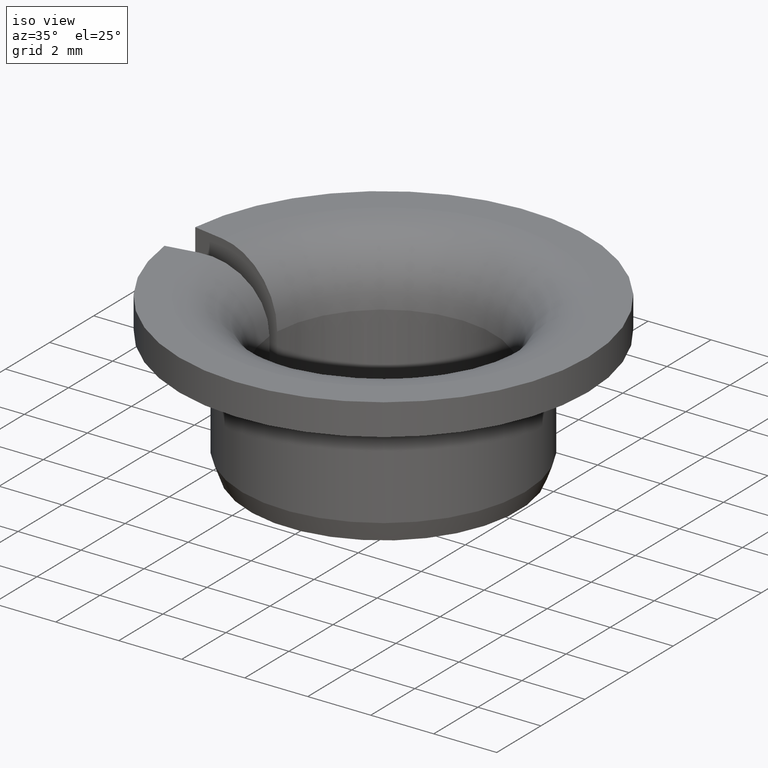
[diagram: clean part render]
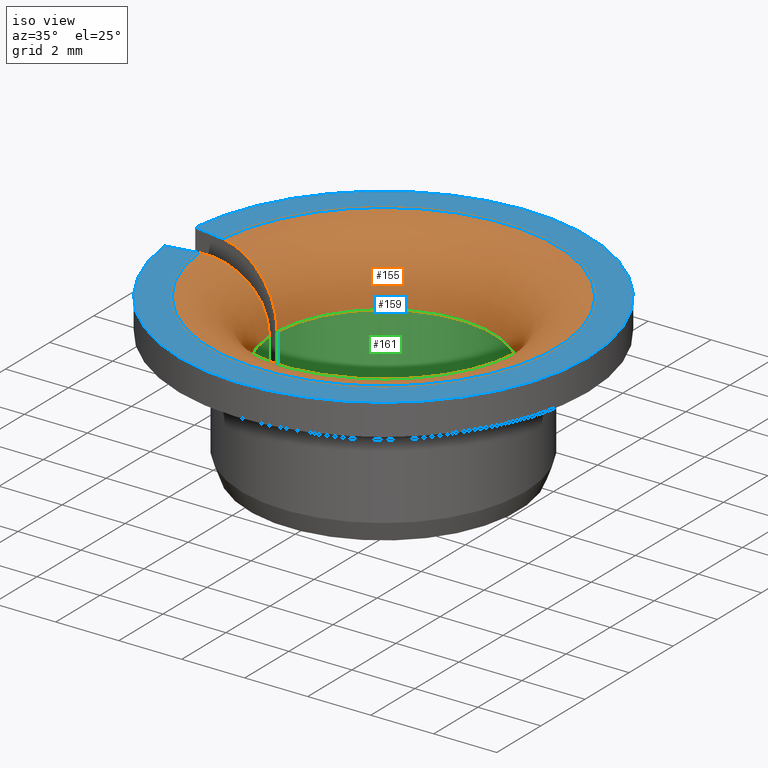
[diagram: same view with three faces highlighted in distinct colors, each labeled with its STEP entity id]
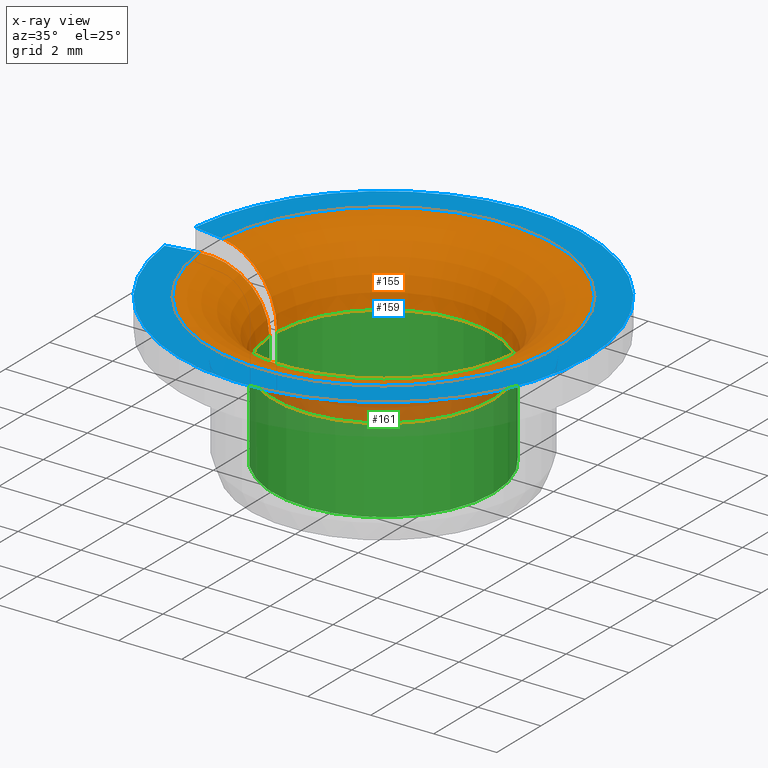
[diagram: x-ray of the same camera — body ghosted, the three highlighted faces saturated]
A machine part, iso view with three faces highlighted in distinct colors.
The next image is the same camera in x-ray (body ghosted, the three faces saturated) — at least one of them is partly hidden behind the body in this view.
Their STEP definitions:

[orange] entity #155 — the highlighted toroidal blend (fillet) surface has major radius 5.5 mm and minor (blend) radius 2 mm.
#155=ADVANCED_FACE('',(#171),#172,.T.);
#171=FACE_OUTER_BOUND('',#196,.T.);
#172=TOROIDAL_SURFACE('',#197,0.0055,0.002);
#196=EDGE_LOOP('',(#236,#237,#238,#239));
#197=AXIS2_PLACEMENT_3D('',#240,#241,#242);
#236=ORIENTED_EDGE('',*,*,#325,.T.);
#237=ORIENTED_EDGE('',*,*,#326,.T.);
#238=ORIENTED_EDGE('',*,*,#327,.F.);
#239=ORIENTED_EDGE('',*,*,#312,.F.);
#240=CARTESIAN_POINT('',(0.0,0.0,0.003));
#241=DIRECTION('',(0.0,-6.12323399573677E-017,-1.0));
#242=DIRECTION('',(0.0,1.0,-6.12323399573677E-017));
#312=EDGE_CURVE('',#342,#343,#344,.T.);
#325=EDGE_CURVE('',#342,#367,#368,.T.);
#326=EDGE_CURVE('',#367,#369,#370,.T.);
#327=EDGE_CURVE('',#343,#369,#371,.T.);
#342=VERTEX_POINT('',#392);
#343=VERTEX_POINT('',#393);
#344=B_SPLINE_CURVE_WITH_KNOTS('',3,(#394,#395,#396,#397,#398,#399,#400,#401,#402,#403,#404,#405,#406,#407),.UNSPECIFIED.,.F.,.F.,(4,2,2,2,2,2,4),(1.97150682175314E-007,0.000391667994127723,0.00078313883757327,0.00117460968101882,0.00156608052446437,0.00234902221135546,0.00313196389824656),.UNSPECIFIED.);
#367=VERTEX_POINT('',#454);
#368=CIRCLE('',#455,0.0035);
#369=VERTEX_POINT('',#456);
#370=B_SPLINE_CURVE_WITH_KNOTS('',3,(#457,#458,#459,#460,#461,#462,#463,#464,#465,#466,#467,#468,#469,#470),.UNSPECIFIED.,.F.,.F.,(4,2,2,2,2,2,4),(1.97150682175314E-007,0.000391667994127723,0.00078313883757327,0.00117460968101882,0.00156608052446437,0.00234902221135546,0.00313196389824656),.UNSPECIFIED.);
#371=CIRCLE('',#471,0.0055);
#392=CARTESIAN_POINT('',(0.00349559467419468,-0.000175550202910175,0.003));
#393=CARTESIAN_POINT('',(0.00547492801128088,-0.000524560074054194,0.005));
#394=CARTESIAN_POINT('',(0.00349559467419468,-0.000175550202910176,0.003));
#395=CARTESIAN_POINT('',(0.00349559467419468,-0.000175550202910176,0.00313237505254623));
#396=CARTESIAN_POINT('',(0.00350851030739531,-0.000177827577516383,0.0032625130222032));
#397=CARTESIAN_POINT('',(0.00355908225736229,-0.0001867447767626,0.00351850369272592));
#398=CARTESIAN_POINT('',(0.00359736527176605,-0.000193495105104832,0.00364569787423297));
#399=CARTESIAN_POINT('',(0.00369712237797093,-0.000211084974446153,0.00388797051328565));
#400=CARTESIAN_POINT('',(0.0037581309920655,-0.000221842439166657,0.00400284581502968));
#401=CARTESIAN_POINT('',(0.00390216175549987,-0.000247238948812173,0.00422021309593581));
#402=CARTESIAN_POINT('',(0.00398585263673964,-0.000261995909214013,0.00432298016352443));
#403=CARTESIAN_POINT('',(0.00425980547402477,-0.000310301185869018,0.00459925015766709));
#404=CARTESIAN_POINT('',(0.00448033149154054,-0.000349185872705236,0.00474794435792037));
#405=CARTESIAN_POINT('',(0.00495546162599219,-0.000432964134756702,0.00494711308227049));
#406=CARTESIAN_POINT('',(0.00521460814373156,-0.000478658657790797,0.005));
#407=CARTESIAN_POINT('',(0.00547492801128088,-0.000524560074054197,0.005));
#454=CARTESIAN_POINT('',(0.00349559467419468,0.000175550202910176,0.003));
#455=AXIS2_PLACEMENT_3D('',#522,#523,#524);
#456=CARTESIAN_POINT('',(0.00547492801128088,0.000524560074054193,0.005));
#457=CARTESIAN_POINT('',(0.00349559467419468,0.000175550202910176,0.003));
#458=CARTESIAN_POINT('',(0.00349559467419468,0.000175550202910176,0.00313237505254623));
#459=CARTESIAN_POINT('',(0.00350851030739531,0.000177827577516383,0.0032625130222032));
#460=CARTESIAN_POINT('',(0.00355908225736229,0.0001867447767626,0.00351850369272592));
#461=CARTESIAN_POINT('',(0.00359736527176605,0.000193495105104832,0.00364569787423297));
#462=CARTESIAN_POINT('',(0.00369712237797093,0.000211084974446153,0.00388797051328565));
#463=CARTESIAN_POINT('',(0.0037581309920655,0.000221842439166657,0.00400284581502968));
#464=CARTESIAN_POINT('',(0.00390216175549987,0.000247238948812174,0.00422021309593581));
#465=CARTESIAN_POINT('',(0.00398585263673964,0.000261995909214013,0.00432298016352443));
#466=CARTESIAN_POINT('',(0.00425980547402477,0.000310301185869018,0.00459925015766709));
#467=CARTESIAN_POINT('',(0.00448033149154054,0.000349185872705236,0.00474794435792037));
#468=CARTESIAN_POINT('',(0.00495546162599219,0.000432964134756701,0.00494711308227049));
#469=CARTESIAN_POINT('',(0.00521460814373156,0.000478658657790797,0.005));
#470=CARTESIAN_POINT('',(0.00547492801128088,0.000524560074054197,0.005));
#471=AXIS2_PLACEMENT_3D('',#525,#526,#527);
#522=CARTESIAN_POINT('',(0.0,0.0,0.003));
#523=DIRECTION('',(0.0,-6.12323399573677E-017,-1.0));
#524=DIRECTION('',(0.0,1.0,-6.12323399573677E-017));
#525=CARTESIAN_POINT('',(0.0,0.0,0.005));
#526=DIRECTION('',(0.0,-6.12323399573677E-017,-1.0));
#527=DIRECTION('',(0.0,1.0,-6.12323399573677E-017));

[blue] entity #159 — the highlighted planar face has unit normal (0, -0, 1).
#159=ADVANCED_FACE('',(#179),#180,.T.);
#179=FACE_OUTER_BOUND('',#204,.T.);
#180=PLANE('',#205);
#204=EDGE_LOOP('',(#264,#265,#266,#267));
#205=AXIS2_PLACEMENT_3D('',#268,#269,#270);
#264=ORIENTED_EDGE('',*,*,#327,.T.);
#265=ORIENTED_EDGE('',*,*,#335,.F.);
#266=ORIENTED_EDGE('',*,*,#333,.F.);
#267=ORIENTED_EDGE('',*,*,#313,.T.);
#268=CARTESIAN_POINT('',(0.0065,0.0,0.005));
#269=DIRECTION('',(0.0,6.12323399573677E-017,1.0));
#270=DIRECTION('',(0.0,-1.0,6.12323399573677E-017));
#313=EDGE_CURVE('',#345,#343,#346,.T.);
#327=EDGE_CURVE('',#343,#369,#371,.T.);
#333=EDGE_CURVE('',#345,#380,#381,.T.);
#335=EDGE_CURVE('',#380,#369,#383,.T.);
#343=VERTEX_POINT('',#393);
#345=VERTEX_POINT('',#408);
#346=LINE('',#409,#410);
#369=VERTEX_POINT('',#456);
#371=CIRCLE('',#471,0.0055);
#380=VERTEX_POINT('',#490);
#381=CIRCLE('',#491,0.0065);
#383=LINE('',#494,#495);
#393=CARTESIAN_POINT('',(0.00547492801128088,-0.000524560074054194,0.005));
#408=CARTESIAN_POINT('',(0.00646234193761562,-0.00069866779039429,0.005));
#409=CARTESIAN_POINT('',(0.00840884651807325,-0.00104188906600158,0.005));
#410=VECTOR('',#510,1.0);
#456=CARTESIAN_POINT('',(0.00547492801128088,0.000524560074054193,0.005));
#471=AXIS2_PLACEMENT_3D('',#525,#526,#527);
#490=CARTESIAN_POINT('',(0.00646234193761562,0.000698667790394288,0.005));
#491=AXIS2_PLACEMENT_3D('',#538,#539,#540);
#494=CARTESIAN_POINT('',(0.00840884651807325,0.00104188906600158,0.005));
#495=VECTOR('',#542,1.0);
#510=DIRECTION('',(-0.984807753012208,0.173648177666931,0.0));
#525=CARTESIAN_POINT('',(0.0,0.0,0.005));
#526=DIRECTION('',(0.0,-6.12323399573677E-017,-1.0));
#527=DIRECTION('',(0.0,1.0,-6.12323399573677E-017));
#538=CARTESIAN_POINT('',(0.0,0.0,0.005));
#539=DIRECTION('',(0.0,-6.12323399573677E-017,-1.0));
#540=DIRECTION('',(0.0,1.0,-6.12323399573677E-017));
#542=DIRECTION('',(-0.984807753012208,-0.173648177666931,2.0942693688385E-017));

[green] entity #161 — the highlighted cylindrical surface (partial cylindrical patch) has radius 3.5 mm, axis along (-0, 0, -1).
#161=ADVANCED_FACE('',(#183),#184,.F.);
#183=FACE_OUTER_BOUND('',#208,.T.);
#184=CYLINDRICAL_SURFACE('',#209,0.0035);
#208=EDGE_LOOP('',(#278,#279,#280,#281));
#209=AXIS2_PLACEMENT_3D('',#282,#283,#284);
#278=ORIENTED_EDGE('',*,*,#324,.T.);
#279=ORIENTED_EDGE('',*,*,#338,.T.);
#280=ORIENTED_EDGE('',*,*,#325,.F.);
#281=ORIENTED_EDGE('',*,*,#321,.F.);
#282=CARTESIAN_POINT('',(0.0,0.0,0.0));
#283=DIRECTION('',(0.0,-6.12323399573677E-017,-1.0));
#284=DIRECTION('',(0.0,1.0,-6.12323399573677E-017));
#321=EDGE_CURVE('',#359,#342,#361,.F.);
#324=EDGE_CURVE('',#359,#364,#366,.T.);
#325=EDGE_CURVE('',#342,#367,#368,.T.);
#338=EDGE_CURVE('',#364,#367,#387,.F.);
#342=VERTEX_POINT('',#392);
#359=VERTEX_POINT('',#439);
#361=LINE('',#444,#445);
#364=VERTEX_POINT('',#448);
#366=CIRCLE('',#453,0.0035);
#367=VERTEX_POINT('',#454);
#368=CIRCLE('',#455,0.0035);
#387=LINE('',#500,#501);
#392=CARTESIAN_POINT('',(0.00349559467419468,-0.000175550202910175,0.003));
#439=CARTESIAN_POINT('',(0.00349559467419468,-0.000175550202910176,0.0003));
#444=CARTESIAN_POINT('',(0.00349559467419468,-0.000175550202910175,3.69277168146619E-020));
#445=VECTOR('',#515,1.0);
#448=CARTESIAN_POINT('',(0.00349559467419468,0.000175550202910176,0.0003));
#453=AXIS2_PLACEMENT_3D('',#519,#520,#521);
#454=CARTESIAN_POINT('',(0.00349559467419468,0.000175550202910176,0.003));
#455=AXIS2_PLACEMENT_3D('',#522,#523,#524);
#500=CARTESIAN_POINT('',(0.00349559467419468,0.000175550202910176,-3.85308202708529E-020));
#501=VECTOR('',#547,1.0);
#515=DIRECTION('',(0.0,-6.12323399573677E-017,-1.0));
#519=CARTESIAN_POINT('',(0.0,0.0,0.0003));
#520=DIRECTION('',(0.0,-6.12323399573677E-017,-1.0));
#521=DIRECTION('',(0.0,1.0,-6.12323399573677E-017));
#522=CARTESIAN_POINT('',(0.0,0.0,0.003));
#523=DIRECTION('',(0.0,-6.12323399573677E-017,-1.0));
#524=DIRECTION('',(0.0,1.0,-6.12323399573677E-017));
#547=DIRECTION('',(0.0,-6.12323399573677E-017,-1.0));